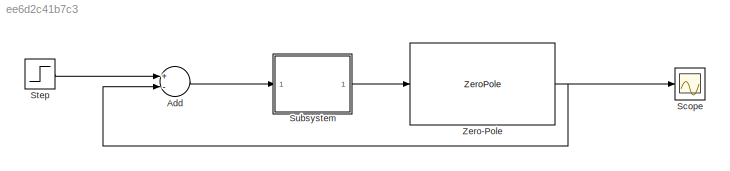
MODEL slx_ee6d2c41b7c3
KIND model
CONFIG AbsTol = auto
CONFIG EnableMultiTasking = off
CONFIG FixedStep = auto
CONFIG MaxStep = auto
CONFIG MinStep = auto
CONFIG RelTol = 1e-3
CONFIG SampleTimeConstraint = Unconstrained
CONFIG Solver = VariableStepAuto
CONFIG SolverName = VariableStepAuto
CONFIG StartTime = 0.0
CONFIG StopTime = 10.0
BLOCK [Sum] Add
  InputSameDT = off
  Inputs = +-
  OutDataTypeStr = Inherit: Inherit via internal rule
  Ports = [2, 1]
  SaturateOnIntegerOverflow = off
BLOCK [Scope] Scope
  Floating = off
  NumInputPorts = 1
  Ports = [1]
  ScopeSpecificationString = Simulink.scopes.TimeScopeBlockCfg('CurrentConfiguration', extmgr.ConfigurationSet(extmgr.Configuration('Core','General UI',true),extmgr.Configuration('Core','Source UI',true),extmgr.Configuration('Sources','WiredSimulink',true),extmgr.Configuration('Visuals','Time Domain',true,'SerializedDisplays',{struct('MinYLimReal','-0.15508','MaxYLimReal','1.39573','YLabelReal','','MinYLimMag','0.00000','MaxY...<+1349ch>
BLOCK [Step] Step
  SampleTime = 0
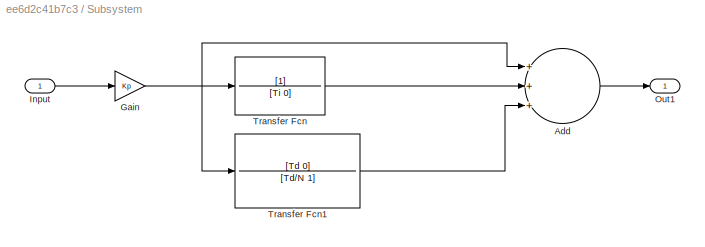
BLOCK [SubSystem] Subsystem
  Ports = [1, 1]
  RequestExecContextInheritance = off
BLOCK [Sum] Subsystem/Add
  InputSameDT = off
  Inputs = +++
  OutDataTypeStr = Inherit: Inherit via internal rule
  Ports = [3, 1]
  SaturateOnIntegerOverflow = off
BLOCK [Gain] Subsystem/Gain
  Gain = Kp
  OutDataTypeStr = Inherit: Inherit via internal rule
  ParamDataTypeStr = Inherit: Inherit via internal rule
  SaturateOnIntegerOverflow = off
BLOCK [Inport] Subsystem/Input
  IconDisplay = Port number
BLOCK [Outport] Subsystem/Out1
  IconDisplay = Port number
BLOCK [TransferFcn] Subsystem/Transfer Fcn
  Denominator = [Ti 0]
BLOCK [TransferFcn] Subsystem/Transfer Fcn1
  Denominator = [Td/N 1]
  Numerator = [Td 0]
BLOCK [ZeroPole] Zero-Pole
  Gain = 2
  Poles = [-1 -3 -5]
  Zeros = []
LINE Add:1 -> Subsystem:1
LINE Step:1 -> Add:1
LINE Subsystem/Add:1 -> Subsystem/Out1:1
NET Subsystem/Gain:1 -> Subsystem/Add:1, Subsystem/Transfer Fcn1:1, Subsystem/Transfer Fcn:1
LINE Subsystem/Input:1 -> Subsystem/Gain:1
LINE Subsystem/Transfer Fcn1:1 -> Subsystem/Add:3
LINE Subsystem/Transfer Fcn:1 -> Subsystem/Add:2
LINE Subsystem:1 -> Zero-Pole:1
NET Zero-Pole:1 -> Add:2, Scope:1
note: NET lines group one-source signal fan-out (src -> all destinations, sorted); 1:1 wires keep LINE
